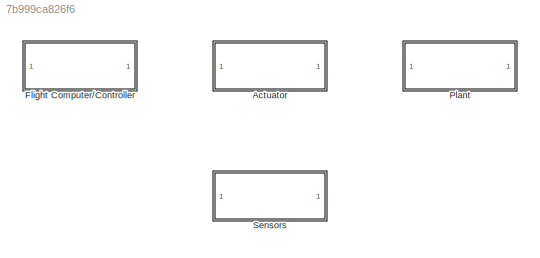
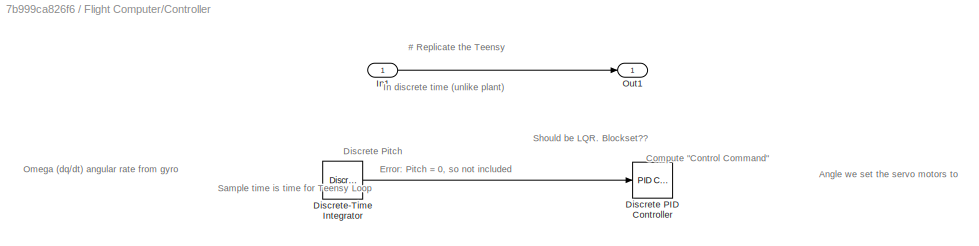
MODEL slx_7b999ca826f6
KIND model
CONFIG AbsTol = auto
CONFIG EnableMultiTasking = off
CONFIG FixedStep = auto
CONFIG MaxStep = auto
CONFIG MinStep = auto
CONFIG RelTol = 1e-3
CONFIG SampleTimeConstraint = Unconstrained
CONFIG SolverName = VariableStepAuto
CONFIG StartTime = 0.0
CONFIG StopTime = 30
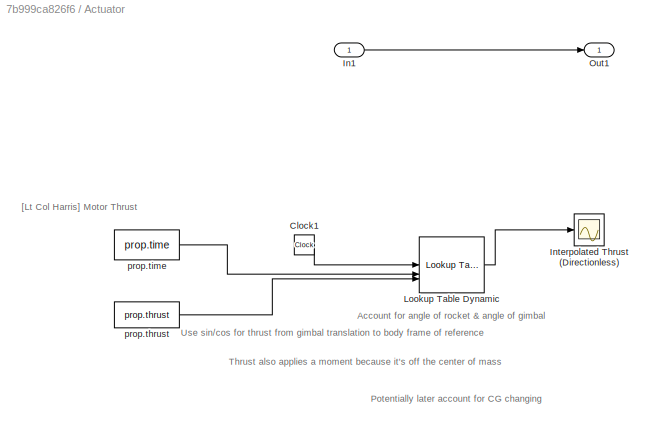
BLOCK [SubSystem] Actuator
BLOCK [Clock] Actuator/Clock1
BLOCK [Inport] Actuator/In1
BLOCK [Scope] Actuator/Interpolated Thrust (Directionless)
  Floating = off
  NumInputPorts = 1
  ScopeSpecificationString = Simulink.scopes.TimeScopeBlockCfg('CurrentConfiguration', extmgr.ConfigurationSet(extmgr.Configuration('Core','General UI',true),extmgr.Configuration('Core','Source UI',true),extmgr.Configuration('Sources','WiredSimulink',true,'DataLoggingVariableName','ScopeData1'),extmgr.Configuration('Visuals','Time Domain',true,'SerializedDisplays',{struct('MinYLimReal','-2.86676','MaxYLimReal','25.80088','YLa...<+1611ch>
BLOCK [Reference] Actuator/Lookup Table Dynamic  REF=simulink/Lookup
Tables/Lookup
Table
Dynamic
  SourceBlock = simulink/Lookup\nTables/Lookup\nTable\nDynamic
  SourceType = Lookup Table Dynamic
BLOCK [Outport] Actuator/Out1
BLOCK [Constant] Actuator/prop.thrust
  Value = prop.thrust
BLOCK [Constant] Actuator/prop.time
  Value = prop.time
BLOCK [SubSystem] Flight Computer//Controller
BLOCK [Reference] Flight Computer//Controller/Discrete PID Controller  REF=slpidlib/PID Controller
  LibrarySourceBlock = simulink/Discrete/Discrete PID Controller
  SourceBlock = slpidlib/PID Controller
  SourceType = PID 1dof
BLOCK [DiscreteIntegrator] Flight Computer//Controller/Discrete-Time Integrator
  ICPrevOutput = DiscIntNeverNeededParam
  ICPrevScaledInput = DiscIntNeverNeededParam
  InitialConditionSetting = Auto
  SampleTime = 0.01
BLOCK [Inport] Flight Computer//Controller/In1
BLOCK [Outport] Flight Computer//Controller/Out1
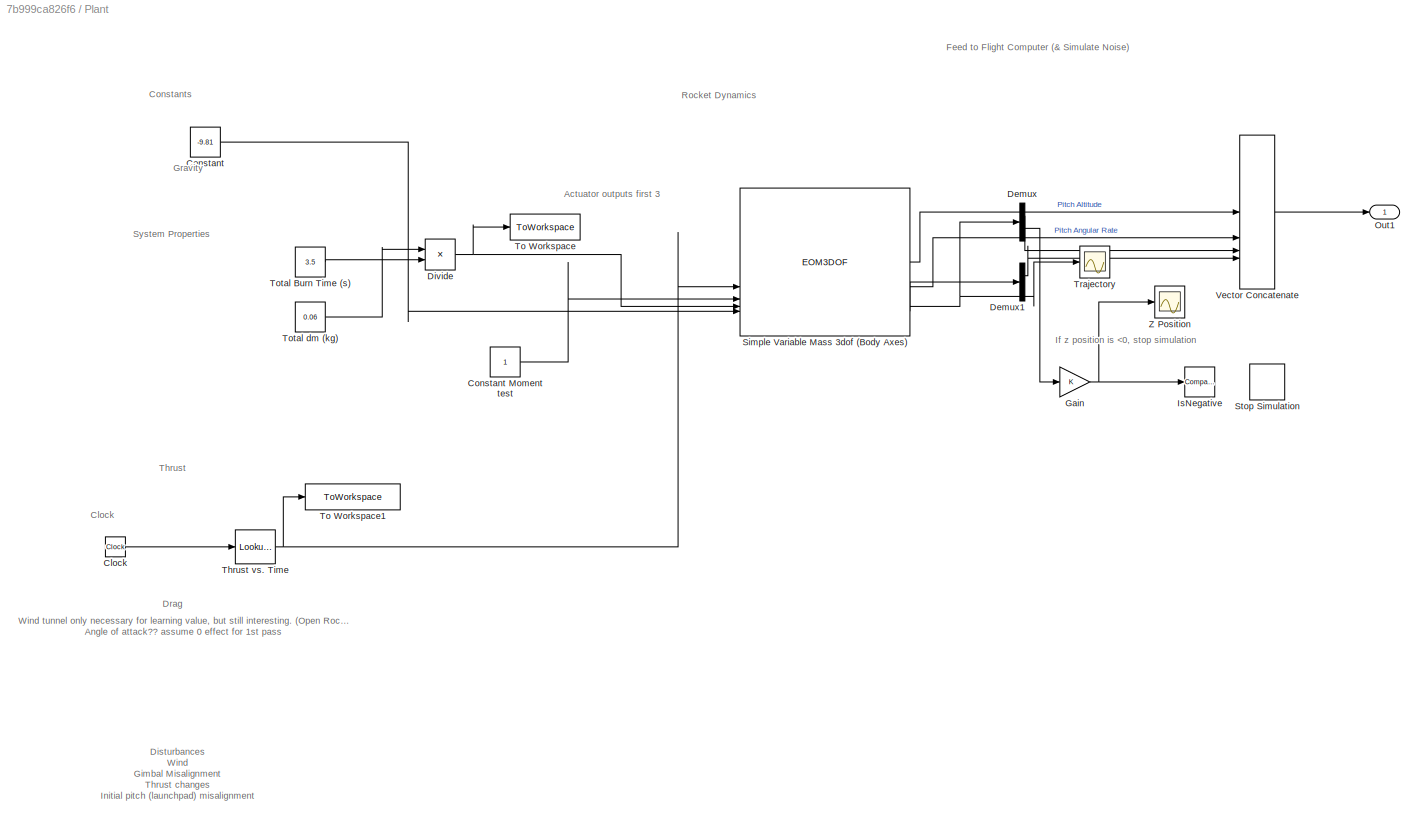
BLOCK [SubSystem] Plant
BLOCK [Clock] Plant/Clock
BLOCK [Constant] Plant/Constant
  Value = -9.81
BLOCK [Constant] Plant/Constant Moment test
BLOCK [Demux] Plant/Demux
  Outputs = 2
BLOCK [Demux] Plant/Demux1
  Outputs = 2
BLOCK [Product] Plant/Divide
  Inputs = */
  OutDataTypeStr = double
BLOCK [Gain] Plant/Gain
BLOCK [Reference] Plant/IsNegative  REF=simulink/Logic and Bit
Operations/Compare
To Zero
  LibrarySourceBlock = simulink/Quick Insert/Logic and Bit\nOperations/IsNegative
  SourceBlock = simulink/Logic and Bit\nOperations/Compare\nTo Zero
  SourceType = Compare To Zero
BLOCK [Outport] Plant/Out1
BLOCK [EOM3DOF] Plant/Simple Variable Mass 3dof (Body Axes)
  g_in = External
  mass_f = 1.0
  mtype = Simple Variable
BLOCK [Stop] Plant/Stop Simulation
BLOCK [Lookup_n-D] Plant/Thrust vs. Time
  BreakpointsForDimension1 = prop.time
  InputPortMap = u0
  InternalRulePriority = Speed
  NumberOfTableDimensions = 1
  RndMeth = Simplest
  Table = prop.thrust
BLOCK [ToWorkspace] Plant/To Workspace
  FixptAsFi = on
  MaxDataPoints = inf
  SampleTime = -1
  VariableName = dm_dt
BLOCK [ToWorkspace] Plant/To Workspace1
  FixptAsFi = on
  MaxDataPoints = inf
  SampleTime = -1
  VariableName = thrust_time
BLOCK [Constant] Plant/Total Burn Time (s)
  Value = 3.5
BLOCK [Constant] Plant/Total dm (kg)
  Value = 0.06
BLOCK [Scope] Plant/Trajectory
  Floating = off
  NumInputPorts = 1
  ScopeSpecificationString = Simulink.scopes.TimeScopeBlockCfg('CurrentConfiguration', extmgr.ConfigurationSet(extmgr.Configuration('Core','General UI',true),extmgr.Configuration('Core','Source UI',true),extmgr.Configuration('Sources','WiredSimulink',true,'DataLoggingVariableName','ScopeData2'),extmgr.Configuration('Visuals','Time Domain',true,'SerializedDisplays',{struct('MinYLimReal','177.43815','MaxYLimReal','193.29129','Y...<+1634ch>
BLOCK [Concatenate] Plant/Vector Concatenate
  NumInputs = 5
BLOCK [Scope] Plant/Z Position
  Floating = off
  NumInputPorts = 1
  ScopeSpecificationString = Simulink.scopes.TimeScopeBlockCfg('CurrentConfiguration', extmgr.ConfigurationSet(extmgr.Configuration('Core','General UI',true),extmgr.Configuration('Core','Source UI',true),extmgr.Configuration('Sources','WiredSimulink',true,'DataLoggingVariableName','ScopeData1'),extmgr.Configuration('Visuals','Time Domain',true,'SerializedDisplays',{struct('MinYLimReal','-540176.32736','MaxYLimReal','60055.868...<+1600ch>
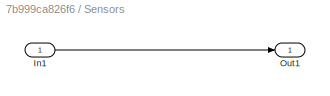
BLOCK [SubSystem] Sensors
BLOCK [Inport] Sensors/In1
BLOCK [Outport] Sensors/Out1
ANNOTATION Actuator: Account for angle of rocket & angle of gimbal
ANNOTATION Actuator: Potentially later account for CG changing
ANNOTATION Actuator: Thrust also applies a moment because it's off the center of mass
ANNOTATION Actuator: Use sin/cos for thrust from gimbal translation to body frame of reference
ANNOTATION Actuator: [Lt Col Harris] Motor Thrust
ANNOTATION Flight Computer//Controller: # Replicate the Teensy
ANNOTATION Flight Computer//Controller: Angle we set the servo motors to
ANNOTATION Flight Computer//Controller: Compute "Control Command"
ANNOTATION Flight Computer//Controller: Discrete Pitch
ANNOTATION Flight Computer//Controller: Error: Pitch = 0, so not included
ANNOTATION Flight Computer//Controller: In discrete time (unlike plant)
ANNOTATION Flight Computer//Controller: Omega (dq/dt) angular rate from gyro
ANNOTATION Flight Computer//Controller: Sample time is time for Teensy Loop
ANNOTATION Flight Computer//Controller: Should be LQR. Blockset??
ANNOTATION Plant: Disturbances Wind Gimbal Misalignment Thrust changes Initial pitch (launchpad) misalignment
ANNOTATION Plant: Wind tunnel only necessary for learning value, but still interesting. ( Open Rocket for estimates of Cd and Cl) Angle of attack?? assume 0 effect for 1st pass
ANNOTATION Plant: Actuator outputs first 3
ANNOTATION Plant: Clock
ANNOTATION Plant: Constants
ANNOTATION Plant: Drag
ANNOTATION Plant: Feed to Flight Computer (& Simulate Noise)
ANNOTATION Plant: Gravity
ANNOTATION Plant: If z position is <0, stop simulation
ANNOTATION Plant: Rocket Dynamics
ANNOTATION Plant: System Properties
ANNOTATION Plant: Thrust
LINE Actuator/Clock1:1 -> Actuator/Lookup Table Dynamic:1
LINE Actuator/In1:1 -> Actuator/Out1:1
LINE Actuator/Lookup Table Dynamic:1 -> Actuator/Interpolated Thrust (Directionless):1
LINE Actuator/prop.thrust:1 -> Actuator/Lookup Table Dynamic:3
LINE Actuator/prop.time:1 -> Actuator/Lookup Table Dynamic:2
LINE Flight Computer//Controller/Discrete-Time Integrator:1 -> Flight Computer//Controller/Discrete PID Controller:1
LINE Flight Computer//Controller/In1:1 -> Flight Computer//Controller/Out1:1
LINE Plant/Clock:1 -> Plant/Thrust vs. Time:1
LINE Plant/Constant Moment test:1 -> Plant/Simple Variable Mass 3dof (Body Axes):3
LINE Plant/Constant:1 -> Plant/Simple Variable Mass 3dof (Body Axes):5
LINE Plant/Demux1:1 -> Plant/Vector Concatenate:4
LINE Plant/Demux:1 -> Plant/Vector Concatenate:3
LINE Plant/Demux:2 -> Plant/Gain:1
NET Plant/Divide:1 -> Plant/Simple Variable Mass 3dof (Body Axes):4, Plant/To Workspace:1
NET Plant/Gain:1 -> Plant/IsNegative:1, Plant/Z Position:1
LINE Plant/Simple Variable Mass 3dof (Body Axes):1 -> Plant/Vector Concatenate:1
LINE Plant/Simple Variable Mass 3dof (Body Axes):2 -> Plant/Vector Concatenate:2
NET Plant/Simple Variable Mass 3dof (Body Axes):4 -> Plant/Demux:1, Plant/Trajectory:1
LINE Plant/Simple Variable Mass 3dof (Body Axes):5 -> Plant/Demux1:1
NET Plant/Thrust vs. Time:1 -> Plant/Simple Variable Mass 3dof (Body Axes):2, Plant/To Workspace1:1
LINE Plant/Total Burn Time (s):1 -> Plant/Divide:2
LINE Plant/Total dm (kg):1 -> Plant/Divide:1
LINE Plant/Vector Concatenate:1 -> Plant/Out1:1
LINE Sensors/In1:1 -> Sensors/Out1:1
note: NET lines group one-source signal fan-out (src -> all destinations, sorted); 1:1 wires keep LINE
